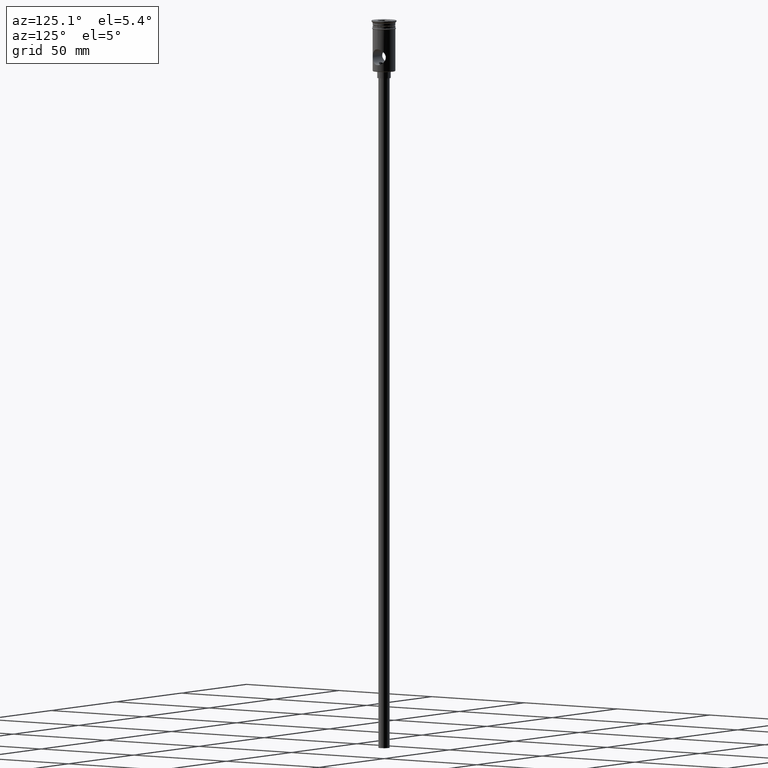
[diagram: clean part render]
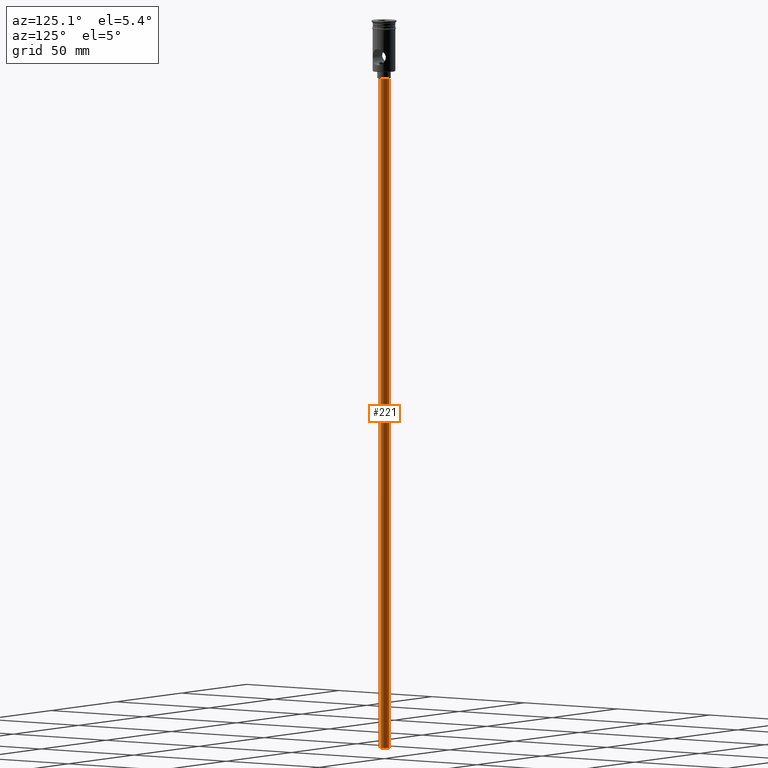
[diagram: same view with one face highlighted and labeled with its STEP entity id]
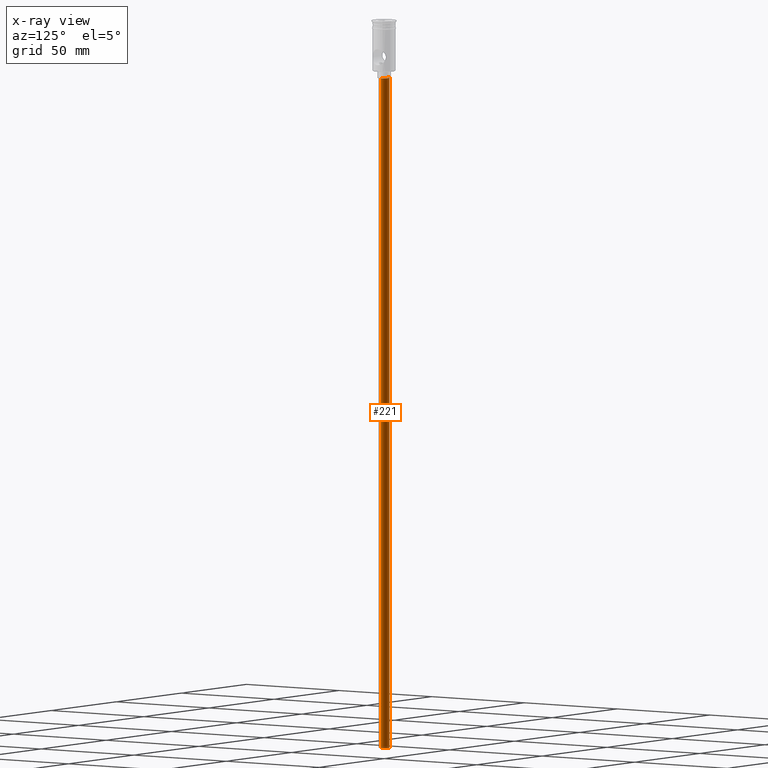
[diagram: x-ray of the same camera — body ghosted, the highlighted face saturated]
A machine part, auxiliary view. The second image highlights one B-rep face of the part: STEP entity #221.
The next image is the same camera in x-ray: the body ghosted, the highlighted face saturated — about 0% of this face is hidden behind the body in this view.
In plain terms, the highlighted cylindrical surface (edge-blend (fillet) strip) has radius 2.5 mm, axis along (-0, -0, 1).
Its self-contained STEP definition (entity closure, byte-faithful):
#109 = DIRECTION ( 'NONE',  ( 1.000000000000000000, 0.000000000000000000, 0.000000000000000000 ) ) ;
#130 = LINE ( 'NONE', #572, #728 ) ;
#181 = CARTESIAN_POINT ( 'NONE',  ( 0.000000000000000000, 0.000000000000000000, -322.5000000000000000 ) ) ;
#210 = DIRECTION ( 'NONE',  ( -0.000000000000000000, -0.000000000000000000, 1.000000000000000000 ) ) ;
#220 = EDGE_LOOP ( 'NONE', ( #1229, #563, #1369, #811 ) ) ;
#221 = ADVANCED_FACE ( 'NONE', ( #1356 ), #235, .T. ) ;
#235 = CYLINDRICAL_SURFACE ( 'NONE', #628, 2.500000000000000000 ) ;
#259 = CIRCLE ( 'NONE', #980, 2.500000000000000000 ) ;
#268 = LINE ( 'NONE', #985, #1399 ) ;
#306 = CARTESIAN_POINT ( 'NONE',  ( -2.500000000000000000, 3.061616997868383141E-16, -322.5000000000000000 ) ) ;
#311 = CARTESIAN_POINT ( 'NONE',  ( -2.500000000000000000, 3.061616997868383141E-16, -25.50000000000000000 ) ) ;
#343 = CARTESIAN_POINT ( 'NONE',  ( 0.000000000000000000, 0.000000000000000000, -322.5000000000000000 ) ) ;
#518 = AXIS2_PLACEMENT_3D ( 'NONE', #181, #1326, #1332 ) ;
#563 = ORIENTED_EDGE ( 'NONE', *, *, #1316, .T. ) ;
#572 = CARTESIAN_POINT ( 'NONE',  ( -2.500000000000000000, 3.061616997868383141E-16, -322.5000000000000000 ) ) ;
#583 = CARTESIAN_POINT ( 'NONE',  ( 2.500000000000000000, 0.000000000000000000, -25.50000000000000000 ) ) ;
#621 = DIRECTION ( 'NONE',  ( -1.000000000000000000, 0.000000000000000000, 0.000000000000000000 ) ) ;
#628 = AXIS2_PLACEMENT_3D ( 'NONE', #343, #210, #109 ) ;
#711 = DIRECTION ( 'NONE',  ( 0.000000000000000000, 0.000000000000000000, -1.000000000000000000 ) ) ;
#722 = CARTESIAN_POINT ( 'NONE',  ( 2.500000000000000000, 0.000000000000000000, -322.5000000000000000 ) ) ;
#728 = VECTOR ( 'NONE', #1314, 1000.000000000000000 ) ;
#787 = VERTEX_POINT ( 'NONE', #722 ) ;
#811 = ORIENTED_EDGE ( 'NONE', *, *, #866, .F. ) ;
#837 = CARTESIAN_POINT ( 'NONE',  ( 0.000000000000000000, 0.000000000000000000, -25.50000000000000000 ) ) ;
#866 = EDGE_CURVE ( 'NONE', #787, #1237, #268, .T. ) ;
#980 = AXIS2_PLACEMENT_3D ( 'NONE', #837, #711, #621 ) ;
#985 = CARTESIAN_POINT ( 'NONE',  ( 2.500000000000000000, 0.000000000000000000, -322.5000000000000000 ) ) ;
#1059 = VERTEX_POINT ( 'NONE', #311 ) ;
#1097 = VERTEX_POINT ( 'NONE', #306 ) ;
#1164 = CIRCLE ( 'NONE', #518, 2.500000000000000000 ) ;
#1229 = ORIENTED_EDGE ( 'NONE', *, *, #1460, .F. ) ;
#1237 = VERTEX_POINT ( 'NONE', #583 ) ;
#1294 = DIRECTION ( 'NONE',  ( -0.000000000000000000, -0.000000000000000000, 1.000000000000000000 ) ) ;
#1314 = DIRECTION ( 'NONE',  ( -0.000000000000000000, -0.000000000000000000, 1.000000000000000000 ) ) ;
#1316 = EDGE_CURVE ( 'NONE', #1097, #1059, #130, .T. ) ;
#1326 = DIRECTION ( 'NONE',  ( 0.000000000000000000, 0.000000000000000000, -1.000000000000000000 ) ) ;
#1332 = DIRECTION ( 'NONE',  ( -1.000000000000000000, 0.000000000000000000, 0.000000000000000000 ) ) ;
#1356 = FACE_OUTER_BOUND ( 'NONE', #220, .T. ) ;
#1369 = ORIENTED_EDGE ( 'NONE', *, *, #1383, .T. ) ;
#1383 = EDGE_CURVE ( 'NONE', #1059, #1237, #259, .T. ) ;
#1399 = VECTOR ( 'NONE', #1294, 1000.000000000000000 ) ;
#1460 = EDGE_CURVE ( 'NONE', #1097, #787, #1164, .T. ) ;